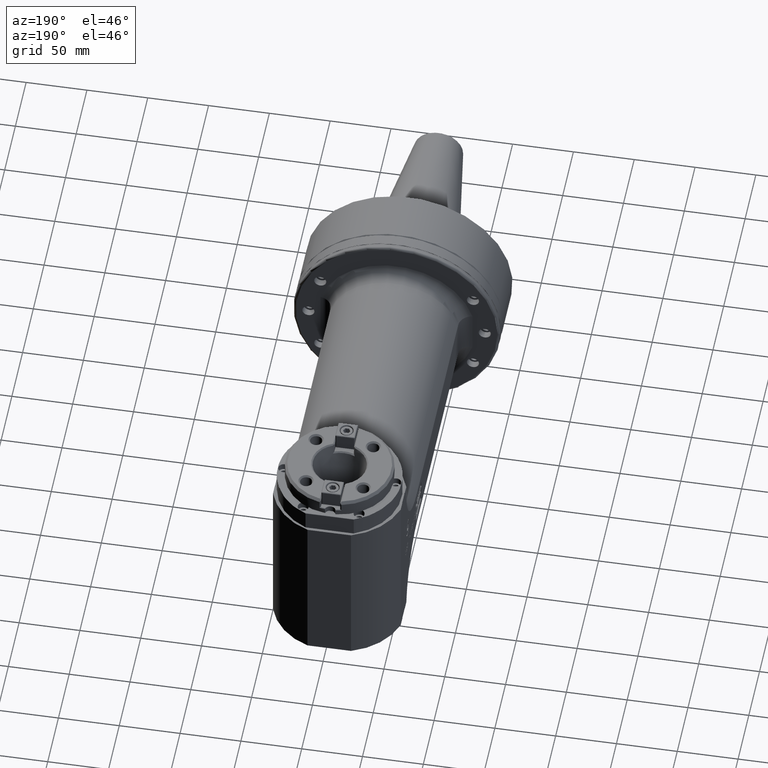
[diagram: clean part render]
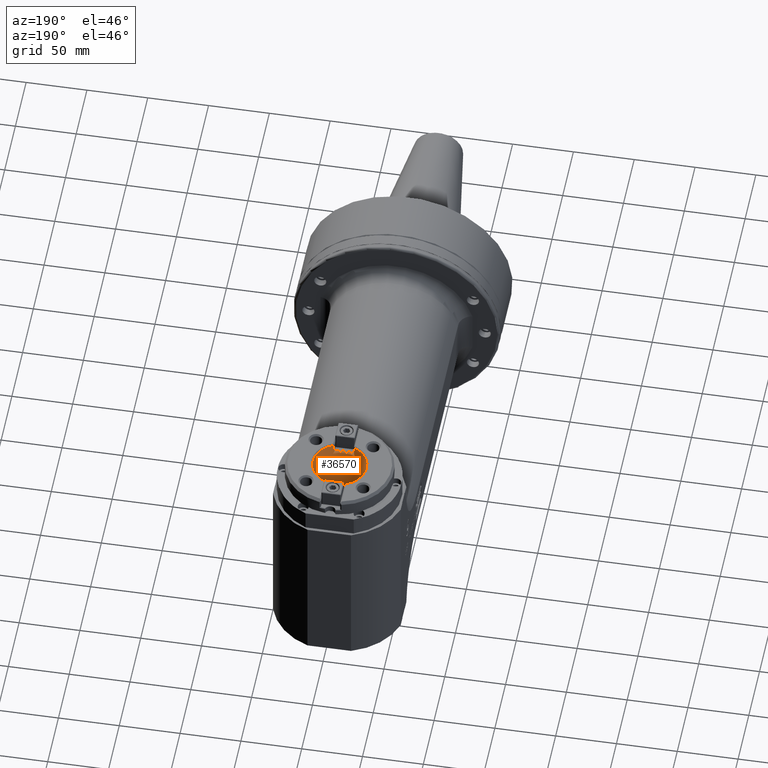
[diagram: same view with one face highlighted and labeled with its STEP entity id]
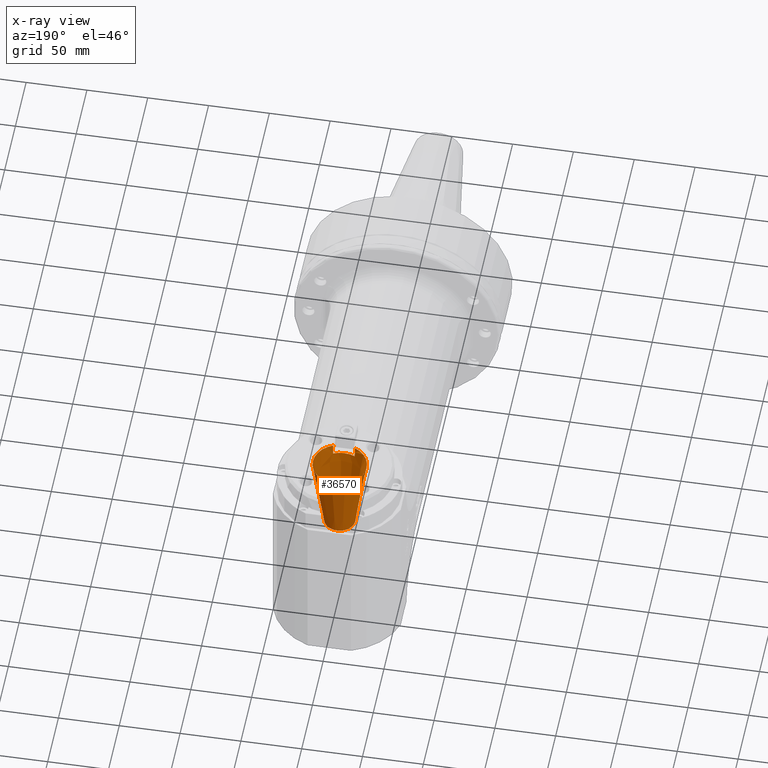
[diagram: x-ray of the same camera — body ghosted, the highlighted face saturated]
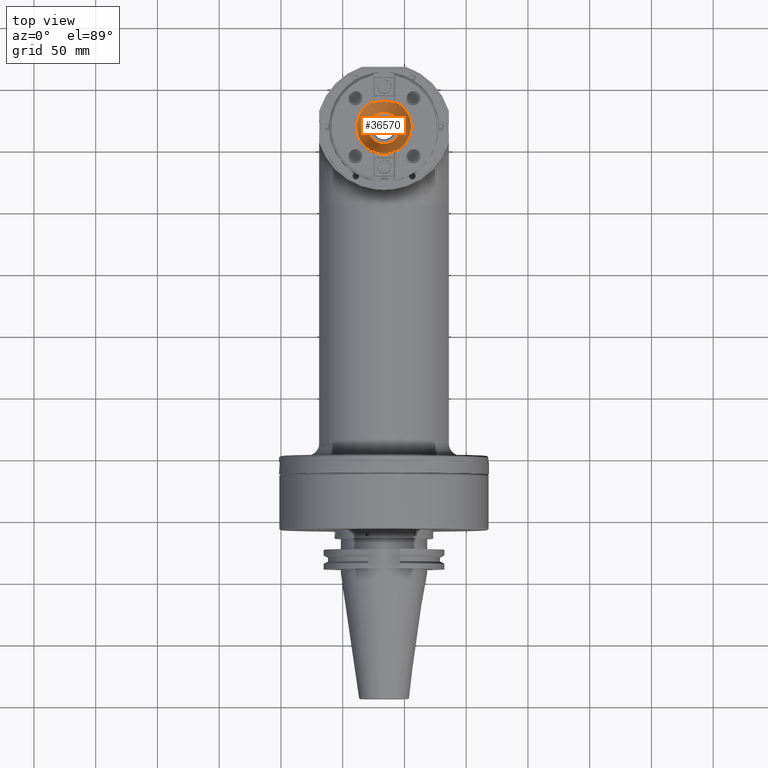
[diagram: same view with one face highlighted and labeled with its STEP entity id]
A machine part, auxiliary view. The second image highlights one B-rep face of the part: STEP entity #36570.
The next image is the same camera in x-ray: the body ghosted, the highlighted face saturated — about 0% of this face is hidden behind the body in this view.
A second angle (top view) of the same face is appended — the face is thin or edge-on in the first view.
In plain terms, the highlighted conical surface has half-angle 8.297 deg.
Its self-contained STEP definition (entity closure, byte-faithful):
#231=ELLIPSE('',#39082,5.83056237950763,0.0756369691743006);
#232=ELLIPSE('',#39086,5.83056241778257,0.075636969235202);
#550=B_SPLINE_CURVE_WITH_KNOTS('',3,(#59007,#59008,#59009,#59010,#59011,
#59012,#59013,#59014,#59015,#59016,#59017,#59018,#59019,#59020,#59021,#59022,
#59023,#59024,#59025),.UNSPECIFIED.,.F.,.F.,(4,3,3,3,3,3,4),(4.10012733552854E-8,
0.153385369548483,0.250340844648613,0.444251794848874,0.735118220149351,
0.929029170349612,0.999999998910821),.UNSPECIFIED.);
#560=B_SPLINE_CURVE_WITH_KNOTS('',3,(#59205,#59206,#59207,#59208,#59209,
#59210,#59211,#59212,#59213,#59214,#59215,#59216,#59217,#59218,#59219,#59220,
#59221,#59222,#59223),.UNSPECIFIED.,.F.,.F.,(4,3,3,3,3,3,4),(4.10012649773803E-8,
0.153385369548523,0.250340844648648,0.4442517948489,0.735118220149365,0.929029170349617,
0.999999998910821),.UNSPECIFIED.);
#883=CONICAL_SURFACE('',#39083,0.685643614382677,0.14480996803797);
#3028=LINE('',#59198,#6318);
#6318=VECTOR('',#45879,0.685643614382677);
#9364=FACE_OUTER_BOUND('',#11591,.T.);
#11591=EDGE_LOOP('',(#28181,#28182,#28183,#28184,#28185,#28186,#28187,#28188,
#28189,#28190,#28191,#28192,#28193));
#13278=CIRCLE('',#39060,0.86931872482874);
#13279=CIRCLE('',#39062,0.823387780160236);
#13288=CIRCLE('',#39084,0.501968503937008);
#13289=CIRCLE('',#39085,0.86931872482874);
#13290=CIRCLE('',#39087,0.823387780160236);
#13291=CIRCLE('',#39088,0.86931872482874);
#13292=CIRCLE('',#39089,0.501968503937008);
#16046=VERTEX_POINT('',#58947);
#16047=VERTEX_POINT('',#58954);
#16048=VERTEX_POINT('',#59006);
#16049=VERTEX_POINT('',#59033);
#16074=VERTEX_POINT('',#59185);
#16075=VERTEX_POINT('',#59194);
#16076=VERTEX_POINT('',#59195);
#16077=VERTEX_POINT('',#59197);
#16078=VERTEX_POINT('',#59199);
#16079=VERTEX_POINT('',#59202);
#16080=VERTEX_POINT('',#59204);
#20391=EDGE_CURVE('',#16046,#16047,#13278,.T.);
#20393=EDGE_CURVE('',#16048,#16047,#550,.T.);
#20395=EDGE_CURVE('',#16048,#16049,#13279,.T.);
#20435=EDGE_CURVE('',#16046,#16074,#231,.T.);
#20436=EDGE_CURVE('',#16075,#16076,#13288,.T.);
#20437=EDGE_CURVE('',#16076,#16077,#3028,.T.);
#20438=EDGE_CURVE('',#16078,#16077,#13289,.T.);
#20439=EDGE_CURVE('',#16078,#16049,#232,.T.);
#20440=EDGE_CURVE('',#16079,#16074,#13290,.T.);
#20441=EDGE_CURVE('',#16079,#16080,#560,.T.);
#20442=EDGE_CURVE('',#16077,#16080,#13291,.T.);
#20443=EDGE_CURVE('',#16076,#16075,#13292,.T.);
#28181=ORIENTED_EDGE('',*,*,#20436,.T.);
#28182=ORIENTED_EDGE('',*,*,#20437,.T.);
#28183=ORIENTED_EDGE('',*,*,#20438,.F.);
#28184=ORIENTED_EDGE('',*,*,#20439,.T.);
#28185=ORIENTED_EDGE('',*,*,#20395,.F.);
#28186=ORIENTED_EDGE('',*,*,#20393,.T.);
#28187=ORIENTED_EDGE('',*,*,#20391,.F.);
#28188=ORIENTED_EDGE('',*,*,#20435,.T.);
#28189=ORIENTED_EDGE('',*,*,#20440,.F.);
#28190=ORIENTED_EDGE('',*,*,#20441,.T.);
#28191=ORIENTED_EDGE('',*,*,#20442,.F.);
#28192=ORIENTED_EDGE('',*,*,#20437,.F.);
#28193=ORIENTED_EDGE('',*,*,#20443,.T.);
#36570=ADVANCED_FACE('',(#9364),#883,.F.);
#39060=AXIS2_PLACEMENT_3D('',#58955,#45809,#45810);
#39062=AXIS2_PLACEMENT_3D('',#59034,#45813,#45814);
#39082=AXIS2_PLACEMENT_3D('',#59192,#45873,#45874);
#39083=AXIS2_PLACEMENT_3D('',#59193,#45875,#45876);
#39084=AXIS2_PLACEMENT_3D('',#59196,#45877,#45878);
#39085=AXIS2_PLACEMENT_3D('',#59200,#45880,#45881);
#39086=AXIS2_PLACEMENT_3D('',#59201,#45882,#45883);
#39087=AXIS2_PLACEMENT_3D('',#59203,#45884,#45885);
#39088=AXIS2_PLACEMENT_3D('',#59224,#45886,#45887);
#39089=AXIS2_PLACEMENT_3D('',#59225,#45888,#45889);
#45809=DIRECTION('center_axis',(0.,0.,-1.));
#45810=DIRECTION('ref_axis',(-1.,0.,0.));
#45813=DIRECTION('center_axis',(0.,0.,-1.));
#45814=DIRECTION('ref_axis',(-0.425879550232622,0.904779867533346,0.));
#45873=DIRECTION('center_axis',(0.991882036326651,-0.125754272003826,-0.0188650228010651));
#45874=DIRECTION('ref_axis',(-0.000194308101895638,0.146855887597636,-0.989157879472368));
#45875=DIRECTION('center_axis',(0.,0.,1.));
#45876=DIRECTION('ref_axis',(-1.,0.,0.));
#45877=DIRECTION('center_axis',(0.,0.,-1.));
#45878=DIRECTION('ref_axis',(1.,0.,0.));
#45879=DIRECTION('',(0.144304389353959,1.76721908525239E-17,0.989533346185555));
#45880=DIRECTION('center_axis',(0.,0.,-1.));
#45881=DIRECTION('ref_axis',(0.404118557084808,0.914706615161218,0.));
#45882=DIRECTION('center_axis',(-0.991882036310316,0.125754272129647,-0.0188650228211784));
#45883=DIRECTION('ref_axis',(-0.000194308108774965,0.14685588755561,0.989157879478606));
#45884=DIRECTION('center_axis',(0.,0.,-1.));
#45885=DIRECTION('ref_axis',(0.425879550232622,-0.904779867533346,0.));
#45886=DIRECTION('center_axis',(0.,0.,-1.));
#45887=DIRECTION('ref_axis',(0.404118557084808,0.914706615161218,0.));
#45888=DIRECTION('center_axis',(0.,0.,-1.));
#45889=DIRECTION('ref_axis',(1.,0.,0.));
#58947=CARTESIAN_POINT('',(-0.351050836012916,11.5275495675429,4.09490026171651));
#58954=CARTESIAN_POINT('',(-0.351050835867265,13.118119723673,4.09490026164887));
#58955=CARTESIAN_POINT('Origin',(0.,12.3228346456693,4.09490026196063));
#59006=CARTESIAN_POINT('',(-0.350663988287581,13.0678193667177,3.77993963954274));
#59007=CARTESIAN_POINT('Ctrl Pts',(-0.350663983848182,13.0678193864463,
3.7799396363813));
#59008=CARTESIAN_POINT('Ctrl Pts',(-0.350685246499273,13.0703748735763,
3.79585700889325));
#59009=CARTESIAN_POINT('Ctrl Pts',(-0.350706261541631,13.0729317787219,
3.81179656372449));
#59010=CARTESIAN_POINT('Ctrl Pts',(-0.350727042712779,13.0754912182162,
3.82776511766812));
#59011=CARTESIAN_POINT('Ctrl Pts',(-0.350740178573562,13.0771090500812,
3.83785890400957));
#59012=CARTESIAN_POINT('Ctrl Pts',(-0.350753220989833,13.078727894559,3.8479642771038));
#59013=CARTESIAN_POINT('Ctrl Pts',(-0.350766173431138,13.0803480335893,
3.85808295860405));
#59014=CARTESIAN_POINT('Ctrl Pts',(-0.350792078313749,13.0835883116499,
3.87832032160453));
#59015=CARTESIAN_POINT('Ctrl Pts',(-0.350817623296497,13.0868337679206,
3.89861091822905));
#59016=CARTESIAN_POINT('Ctrl Pts',(-0.350842836135761,13.0900866579262,
3.91896852170313));
#59017=CARTESIAN_POINT('Ctrl Pts',(-0.350880655394657,13.0949659929347,
3.94950492691426));
#59018=CARTESIAN_POINT('Ctrl Pts',(-0.350917727330707,13.0998620538466,
3.98019209753691));
#59019=CARTESIAN_POINT('Ctrl Pts',(-0.350953941365935,13.1047545932826,
4.01090149480451));
#59020=CARTESIAN_POINT('Ctrl Pts',(-0.350978084056088,13.1080162862399,
4.03137442631623));
#59021=CARTESIAN_POINT('Ctrl Pts',(-0.351001845456989,13.1112764140968,
4.05185723633681));
#59022=CARTESIAN_POINT('Ctrl Pts',(-0.351025261762243,13.1145379203439,
4.07236780672405));
#59023=CARTESIAN_POINT('Ctrl Pts',(-0.351033832060021,13.1157316218883,
4.0798746142207));
#59024=CARTESIAN_POINT('Ctrl Pts',(-0.351042356130922,13.1169255080732,
4.08738514032432));
#59025=CARTESIAN_POINT('Ctrl Pts',(-0.351050835749395,13.118119723208,4.09490026172361));
#59033=CARTESIAN_POINT('',(0.350663973978736,13.0678193614201,3.77993964098182));
#59034=CARTESIAN_POINT('Origin',(0.,12.3228346456693,3.77993963203976));
#59185=CARTESIAN_POINT('',(-0.350663973978732,11.5778499299185,3.77993964098182));
#59192=CARTESIAN_POINT('Origin',(-0.342810304239413,11.0537326721752,7.68663378084701));
#59193=CARTESIAN_POINT('Origin',(0.,12.3228346456693,2.83539147318425));
#59194=CARTESIAN_POINT('',(-0.501968503937008,12.3228346456693,1.57588268440709));
#59195=CARTESIAN_POINT('',(0.501968503936881,12.3228346456693,1.57588268440711));
#59196=CARTESIAN_POINT('Origin',(0.,12.3228346456693,1.57588268440709));
#59197=CARTESIAN_POINT('',(0.86931872482837,12.3228346456693,4.09490026196068));
#59198=CARTESIAN_POINT('',(0.685643614382677,12.3228346456693,2.83539147318425));
#59199=CARTESIAN_POINT('',(0.351050835999571,13.1181197238185,4.09490026172989));
#59200=CARTESIAN_POINT('Origin',(0.,12.3228346456693,4.09490026196063));
#59201=CARTESIAN_POINT('Origin',(0.342810304220944,13.5919366259368,7.68663382629343));
#59202=CARTESIAN_POINT('',(0.350663988287603,11.5778499246209,3.77993963954274));
#59203=CARTESIAN_POINT('Origin',(0.,12.3228346456693,3.77993963203976));
#59204=CARTESIAN_POINT('',(0.351050835867219,11.5275495676655,4.09490026164889));
#59205=CARTESIAN_POINT('Ctrl Pts',(0.350663983848227,11.5778499048922,3.77993963638129));
#59206=CARTESIAN_POINT('Ctrl Pts',(0.350685246499316,11.5752944177623,3.79585700889325));
#59207=CARTESIAN_POINT('Ctrl Pts',(0.350706261541671,11.5727375126167,3.81179656372449));
#59208=CARTESIAN_POINT('Ctrl Pts',(0.350727042712817,11.5701780731225,3.82776511766813));
#59209=CARTESIAN_POINT('Ctrl Pts',(0.350740178573598,11.5685602412574,3.83785890400958));
#59210=CARTESIAN_POINT('Ctrl Pts',(0.350753220989868,11.5669413967796,3.84796427710381));
#59211=CARTESIAN_POINT('Ctrl Pts',(0.350766173431172,11.5653212577493,3.85808295860405));
#59212=CARTESIAN_POINT('Ctrl Pts',(0.35079207831378,11.5620809796887,3.87832032160454));
#59213=CARTESIAN_POINT('Ctrl Pts',(0.350817623296525,11.558835523418,3.89861091822906));
#59214=CARTESIAN_POINT('Ctrl Pts',(0.350842836135787,11.5555826334124,3.91896852170314));
#59215=CARTESIAN_POINT('Ctrl Pts',(0.350880655394678,11.550703298404,3.94950492691427));
#59216=CARTESIAN_POINT('Ctrl Pts',(0.350917727330724,11.545807237492,3.98019209753692));
#59217=CARTESIAN_POINT('Ctrl Pts',(0.350953941365949,11.5409146980561,4.01090149480451));
#59218=CARTESIAN_POINT('Ctrl Pts',(0.350978084056099,11.5376530050987,4.03137442631623));
#59219=CARTESIAN_POINT('Ctrl Pts',(0.351001845456997,11.5343928772418,4.05185723633682));
#59220=CARTESIAN_POINT('Ctrl Pts',(0.351025261762248,11.5311313709947,4.07236780672405));
#59221=CARTESIAN_POINT('Ctrl Pts',(0.351033832060026,11.5299376694504,4.0798746142207));
#59222=CARTESIAN_POINT('Ctrl Pts',(0.351042356130925,11.5287437832654,4.08738514032433));
#59223=CARTESIAN_POINT('Ctrl Pts',(0.351050835749397,11.5275495681306,4.09490026172361));
#59224=CARTESIAN_POINT('Origin',(0.,12.3228346456693,4.09490026196063));
#59225=CARTESIAN_POINT('Origin',(0.,12.3228346456693,1.57588268440709));